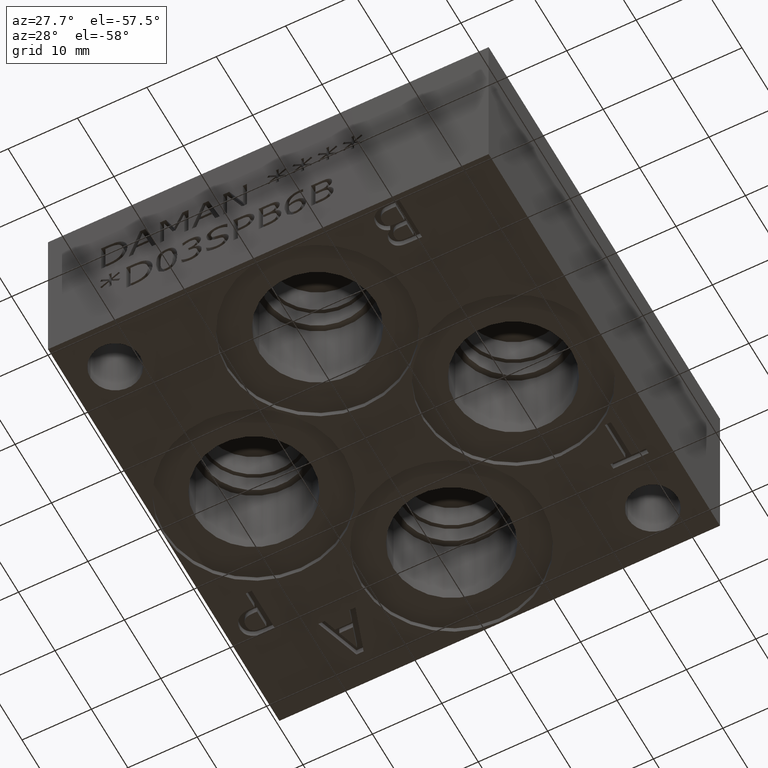
[diagram: clean part render]
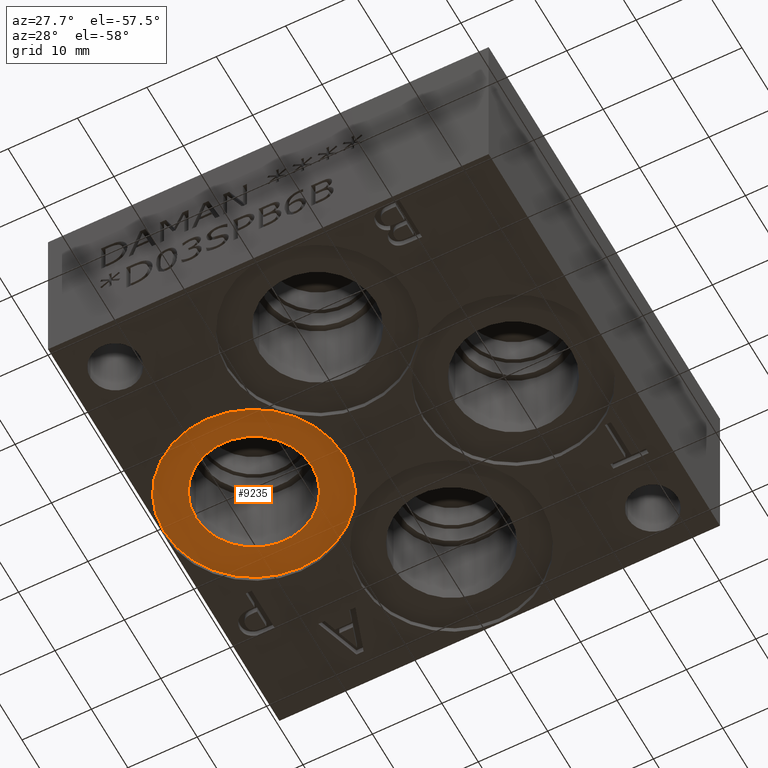
[diagram: same view with one face highlighted and labeled with its STEP entity id]
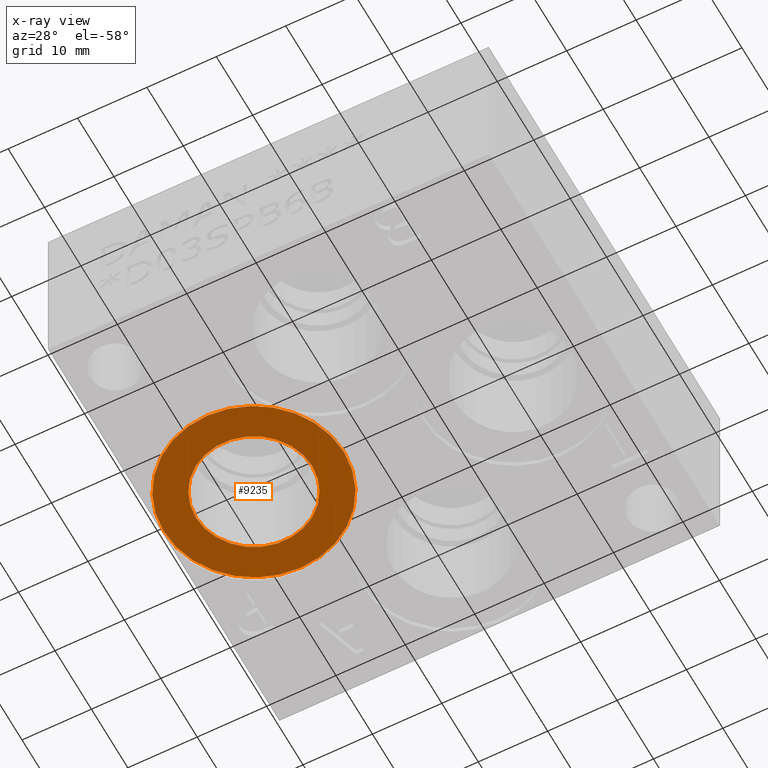
[diagram: x-ray of the same camera — body ghosted, the highlighted face saturated]
A machine part, auxiliary view. The second image highlights one B-rep face of the part: STEP entity #9235.
The next image is the same camera in x-ray: the body ghosted, the highlighted face saturated — about 0% of this face is hidden behind the body in this view.
In plain terms, the highlighted planar face has unit normal (0, 0, 1).
Its self-contained STEP definition (entity closure, byte-faithful):
#74=CIRCLE('',#9592,12.9667);
#75=CIRCLE('',#9593,12.9667);
#76=CIRCLE('',#9595,8.382);
#77=CIRCLE('',#9596,8.382);
#227=FACE_BOUND('',#1456,.T.);
#515=PLANE('',#9594);
#939=FACE_OUTER_BOUND('',#1455,.T.);
#1455=EDGE_LOOP('',(#7956,#7957));
#1456=EDGE_LOOP('',(#7958,#7959));
#4337=VERTEX_POINT('',#15647);
#4338=VERTEX_POINT('',#15649);
#4339=VERTEX_POINT('',#15653);
#4340=VERTEX_POINT('',#15654);
#5578=EDGE_CURVE('',#4337,#4338,#74,.T.);
#5579=EDGE_CURVE('',#4338,#4337,#75,.T.);
#5580=EDGE_CURVE('',#4339,#4340,#76,.T.);
#5581=EDGE_CURVE('',#4340,#4339,#77,.T.);
#7956=ORIENTED_EDGE('',*,*,#5579,.F.);
#7957=ORIENTED_EDGE('',*,*,#5578,.F.);
#7958=ORIENTED_EDGE('',*,*,#5580,.T.);
#7959=ORIENTED_EDGE('',*,*,#5581,.T.);
#9235=ADVANCED_FACE('',(#939,#227),#515,.F.);
#9592=AXIS2_PLACEMENT_3D('',#15650,#11147,#11148);
#9593=AXIS2_PLACEMENT_3D('',#15651,#11149,#11150);
#9594=AXIS2_PLACEMENT_3D('',#15652,#11151,#11152);
#9595=AXIS2_PLACEMENT_3D('',#15655,#11153,#11154);
#9596=AXIS2_PLACEMENT_3D('',#15656,#11155,#11156);
#11147=DIRECTION('center_axis',(0.,0.,1.));
#11148=DIRECTION('ref_axis',(1.,0.,0.));
#11149=DIRECTION('center_axis',(0.,0.,1.));
#11150=DIRECTION('ref_axis',(1.,0.,0.));
#11151=DIRECTION('center_axis',(0.,0.,1.));
#11152=DIRECTION('ref_axis',(1.,0.,0.));
#11153=DIRECTION('center_axis',(0.,0.,1.));
#11154=DIRECTION('ref_axis',(1.,0.,0.));
#11155=DIRECTION('center_axis',(0.,0.,1.));
#11156=DIRECTION('ref_axis',(1.,0.,0.));
#15647=CARTESIAN_POINT('',(0.0381000000000009,31.75,0.7874));
#15649=CARTESIAN_POINT('',(25.9715,31.75,0.7874));
#15650=CARTESIAN_POINT('Origin',(13.0048,31.75,0.7874));
#15651=CARTESIAN_POINT('Origin',(13.0048,31.75,0.7874));
#15652=CARTESIAN_POINT('Origin',(21.3868,31.75,0.7874));
#15653=CARTESIAN_POINT('',(21.3868,31.75,0.7874));
#15654=CARTESIAN_POINT('',(4.6228,31.75,0.7874));
#15655=CARTESIAN_POINT('Origin',(13.0048,31.75,0.7874));
#15656=CARTESIAN_POINT('Origin',(13.0048,31.75,0.7874));